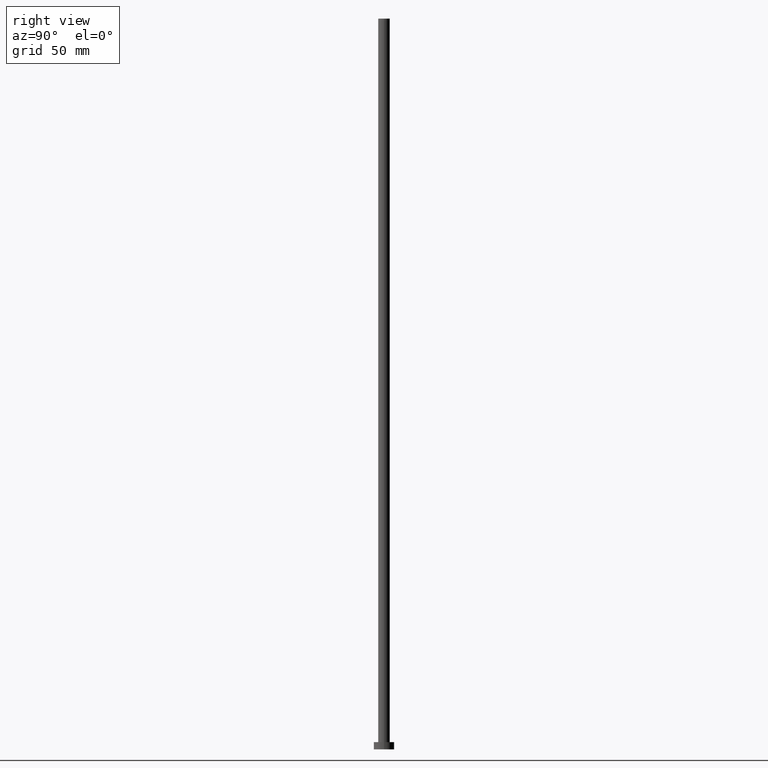
[diagram: clean part render]
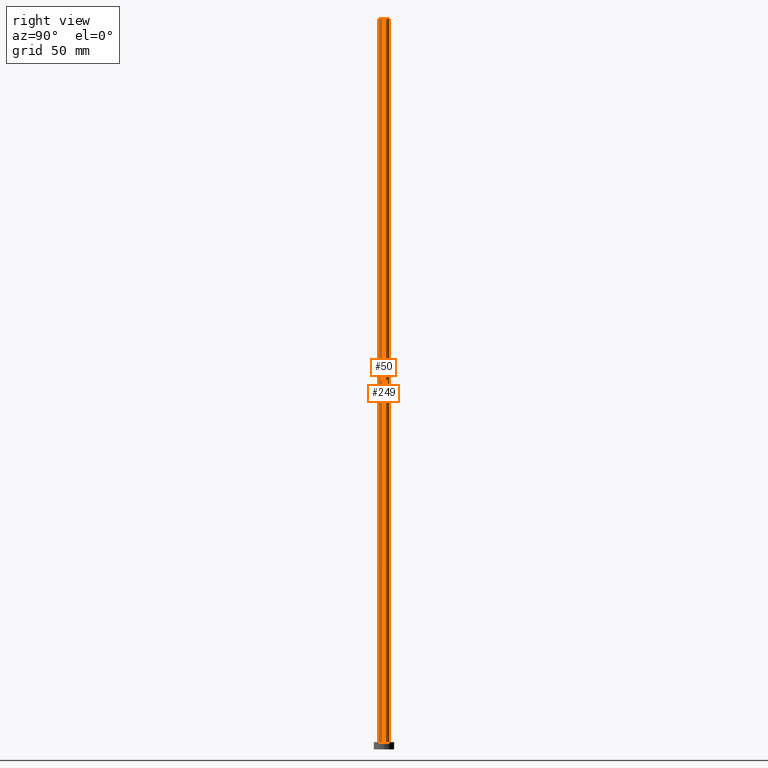
[diagram: same view with one multi-face feature highlighted, each face labeled with its STEP entity id]
A machine part, right view. The highlighted faces form ONE feature: a constant-radius fillet chain: 2 tangent blend faces with common blend radius 4 mm. The faces share edges in the B-rep.
Their STEP definitions:
[1] entity #50 (Cylinder):
#6 = DIRECTION ( 'NONE',  ( 0.000000000000000000, 0.000000000000000000, 1.000000000000000000 ) ) ;
#16 = ORIENTED_EDGE ( 'NONE', *, *, #61, .T. ) ;
#38 = DIRECTION ( 'NONE',  ( 0.000000000000000000, 0.000000000000000000, 1.000000000000000000 ) ) ;
#50 = ADVANCED_FACE ( 'NONE', ( #243 ), #109, .T. ) ;
#51 = CARTESIAN_POINT ( 'NONE',  ( 4.000000000000000000, 4.898587196589412829E-16, 500.0000000000000000 ) ) ;
#61 = EDGE_CURVE ( 'NONE', #106, #65, #255, .T. ) ;
#64 = VECTOR ( 'NONE', #78, 1000.000000000000000 ) ;
#65 = VERTEX_POINT ( 'NONE', #201 ) ;
#69 = CARTESIAN_POINT ( 'NONE',  ( -4.000000000000000000, 0.000000000000000000, 500.0000000000000000 ) ) ;
#74 = AXIS2_PLACEMENT_3D ( 'NONE', #130, #6, #173 ) ;
#78 = DIRECTION ( 'NONE',  ( -0.000000000000000000, -0.000000000000000000, -1.000000000000000000 ) ) ;
#79 = DIRECTION ( 'NONE',  ( -0.000000000000000000, -0.000000000000000000, -1.000000000000000000 ) ) ;
#84 = ORIENTED_EDGE ( 'NONE', *, *, #217, .F. ) ;
#91 = ORIENTED_EDGE ( 'NONE', *, *, #129, .T. ) ;
#92 = CARTESIAN_POINT ( 'NONE',  ( 4.000000000000000000, 4.898587196589412829E-16, 5.000000000000000000 ) ) ;
#94 = ORIENTED_EDGE ( 'NONE', *, *, #170, .F. ) ;
#98 = CARTESIAN_POINT ( 'NONE',  ( -4.000000000000000000, 0.000000000000000000, 500.0000000000000000 ) ) ;
#103 = DIRECTION ( 'NONE',  ( 1.000000000000000000, 0.000000000000000000, 0.000000000000000000 ) ) ;
#104 = AXIS2_PLACEMENT_3D ( 'NONE', #208, #38, #103 ) ;
#106 = VERTEX_POINT ( 'NONE', #69 ) ;
#109 = CYLINDRICAL_SURFACE ( 'NONE', #148, 4.000000000000000000 ) ;
#129 = EDGE_CURVE ( 'NONE', #65, #202, #187, .T. ) ;
#130 = CARTESIAN_POINT ( 'NONE',  ( 0.000000000000000000, 0.000000000000000000, 5.000000000000000000 ) ) ;
#148 = AXIS2_PLACEMENT_3D ( 'NONE', #174, #158, #245 ) ;
#158 = DIRECTION ( 'NONE',  ( -0.000000000000000000, -0.000000000000000000, -1.000000000000000000 ) ) ;
#161 = LINE ( 'NONE', #51, #205 ) ;
#170 = EDGE_CURVE ( 'NONE', #106, #234, #222, .T. ) ;
#172 = EDGE_LOOP ( 'NONE', ( #84, #94, #16, #91 ) ) ;
#173 = DIRECTION ( 'NONE',  ( 1.000000000000000000, 0.000000000000000000, 0.000000000000000000 ) ) ;
#174 = CARTESIAN_POINT ( 'NONE',  ( 0.000000000000000000, 0.000000000000000000, 500.0000000000000000 ) ) ;
#187 = CIRCLE ( 'NONE', #74, 4.000000000000000000 ) ;
#201 = CARTESIAN_POINT ( 'NONE',  ( -4.000000000000000000, 0.000000000000000000, 5.000000000000000000 ) ) ;
#202 = VERTEX_POINT ( 'NONE', #92 ) ;
#205 = VECTOR ( 'NONE', #79, 1000.000000000000000 ) ;
#208 = CARTESIAN_POINT ( 'NONE',  ( 0.000000000000000000, 0.000000000000000000, 500.0000000000000000 ) ) ;
#217 = EDGE_CURVE ( 'NONE', #234, #202, #161, .T. ) ;
#222 = CIRCLE ( 'NONE', #104, 4.000000000000000000 ) ;
#234 = VERTEX_POINT ( 'NONE', #241 ) ;
#241 = CARTESIAN_POINT ( 'NONE',  ( 4.000000000000000000, 4.898587196589412829E-16, 500.0000000000000000 ) ) ;
#243 = FACE_OUTER_BOUND ( 'NONE', #172, .T. ) ;
#245 = DIRECTION ( 'NONE',  ( -1.000000000000000000, 0.000000000000000000, 0.000000000000000000 ) ) ;
#255 = LINE ( 'NONE', #98, #64 ) ;
[2] entity #249 (Cylinder):
#19 = DIRECTION ( 'NONE',  ( -0.000000000000000000, -0.000000000000000000, -1.000000000000000000 ) ) ;
#22 = CARTESIAN_POINT ( 'NONE',  ( 0.000000000000000000, 0.000000000000000000, 500.0000000000000000 ) ) ;
#23 = CARTESIAN_POINT ( 'NONE',  ( 0.000000000000000000, 0.000000000000000000, 500.0000000000000000 ) ) ;
#26 = AXIS2_PLACEMENT_3D ( 'NONE', #52, #29, #177 ) ;
#29 = DIRECTION ( 'NONE',  ( 0.000000000000000000, 0.000000000000000000, 1.000000000000000000 ) ) ;
#34 = ORIENTED_EDGE ( 'NONE', *, *, #39, .F. ) ;
#39 = EDGE_CURVE ( 'NONE', #234, #106, #233, .T. ) ;
#44 = DIRECTION ( 'NONE',  ( -1.000000000000000000, 0.000000000000000000, 0.000000000000000000 ) ) ;
#51 = CARTESIAN_POINT ( 'NONE',  ( 4.000000000000000000, 4.898587196589412829E-16, 500.0000000000000000 ) ) ;
#52 = CARTESIAN_POINT ( 'NONE',  ( 0.000000000000000000, 0.000000000000000000, 5.000000000000000000 ) ) ;
#61 = EDGE_CURVE ( 'NONE', #106, #65, #255, .T. ) ;
#64 = VECTOR ( 'NONE', #78, 1000.000000000000000 ) ;
#65 = VERTEX_POINT ( 'NONE', #201 ) ;
#69 = CARTESIAN_POINT ( 'NONE',  ( -4.000000000000000000, 0.000000000000000000, 500.0000000000000000 ) ) ;
#78 = DIRECTION ( 'NONE',  ( -0.000000000000000000, -0.000000000000000000, -1.000000000000000000 ) ) ;
#79 = DIRECTION ( 'NONE',  ( -0.000000000000000000, -0.000000000000000000, -1.000000000000000000 ) ) ;
#82 = CIRCLE ( 'NONE', #26, 4.000000000000000000 ) ;
#92 = CARTESIAN_POINT ( 'NONE',  ( 4.000000000000000000, 4.898587196589412829E-16, 5.000000000000000000 ) ) ;
#98 = CARTESIAN_POINT ( 'NONE',  ( -4.000000000000000000, 0.000000000000000000, 500.0000000000000000 ) ) ;
#106 = VERTEX_POINT ( 'NONE', #69 ) ;
#113 = EDGE_CURVE ( 'NONE', #202, #65, #82, .T. ) ;
#121 = ORIENTED_EDGE ( 'NONE', *, *, #61, .F. ) ;
#127 = ORIENTED_EDGE ( 'NONE', *, *, #217, .T. ) ;
#128 = ORIENTED_EDGE ( 'NONE', *, *, #113, .T. ) ;
#139 = CYLINDRICAL_SURFACE ( 'NONE', #232, 4.000000000000000000 ) ;
#161 = LINE ( 'NONE', #51, #205 ) ;
#177 = DIRECTION ( 'NONE',  ( 1.000000000000000000, 0.000000000000000000, 0.000000000000000000 ) ) ;
#195 = AXIS2_PLACEMENT_3D ( 'NONE', #23, #242, #219 ) ;
#201 = CARTESIAN_POINT ( 'NONE',  ( -4.000000000000000000, 0.000000000000000000, 5.000000000000000000 ) ) ;
#202 = VERTEX_POINT ( 'NONE', #92 ) ;
#205 = VECTOR ( 'NONE', #79, 1000.000000000000000 ) ;
#210 = FACE_OUTER_BOUND ( 'NONE', #227, .T. ) ;
#217 = EDGE_CURVE ( 'NONE', #234, #202, #161, .T. ) ;
#219 = DIRECTION ( 'NONE',  ( 1.000000000000000000, 0.000000000000000000, 0.000000000000000000 ) ) ;
#227 = EDGE_LOOP ( 'NONE', ( #34, #127, #128, #121 ) ) ;
#232 = AXIS2_PLACEMENT_3D ( 'NONE', #22, #19, #44 ) ;
#233 = CIRCLE ( 'NONE', #195, 4.000000000000000000 ) ;
#234 = VERTEX_POINT ( 'NONE', #241 ) ;
#241 = CARTESIAN_POINT ( 'NONE',  ( 4.000000000000000000, 4.898587196589412829E-16, 500.0000000000000000 ) ) ;
#242 = DIRECTION ( 'NONE',  ( 0.000000000000000000, 0.000000000000000000, 1.000000000000000000 ) ) ;
#249 = ADVANCED_FACE ( 'NONE', ( #210 ), #139, .T. ) ;
#255 = LINE ( 'NONE', #98, #64 ) ;